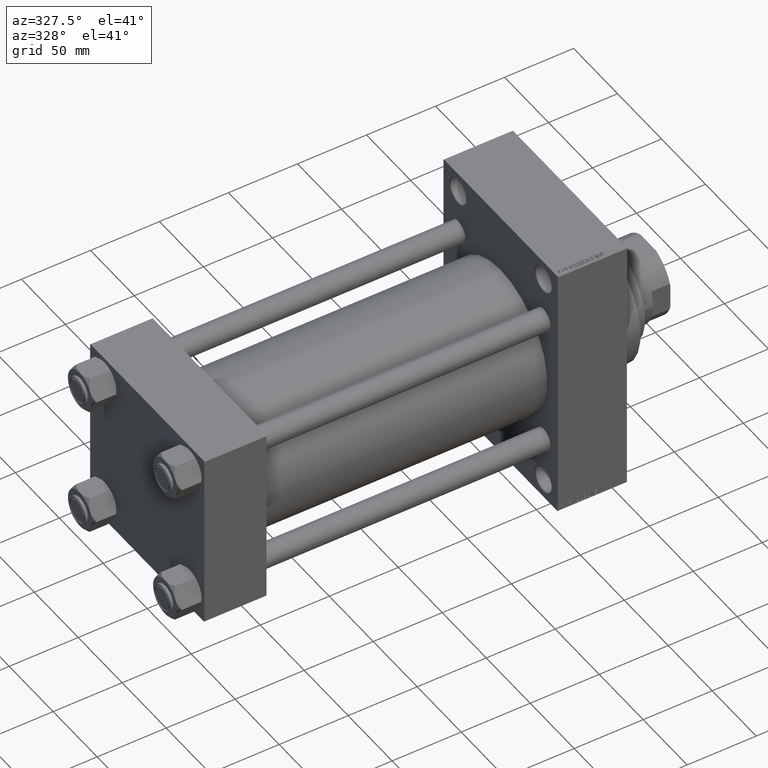
[diagram: clean part render]
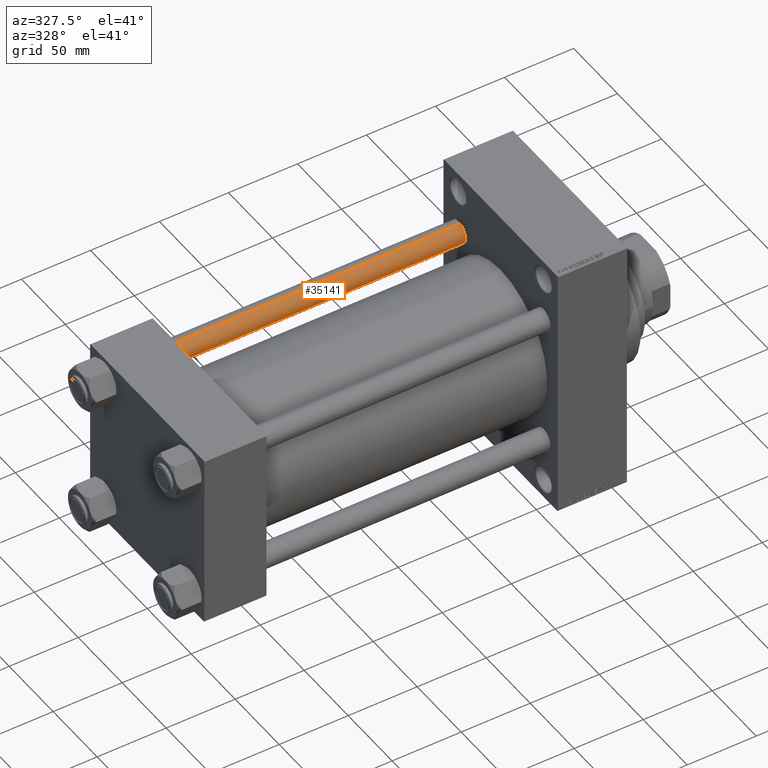
[diagram: same view with one face highlighted and labeled with its STEP entity id]
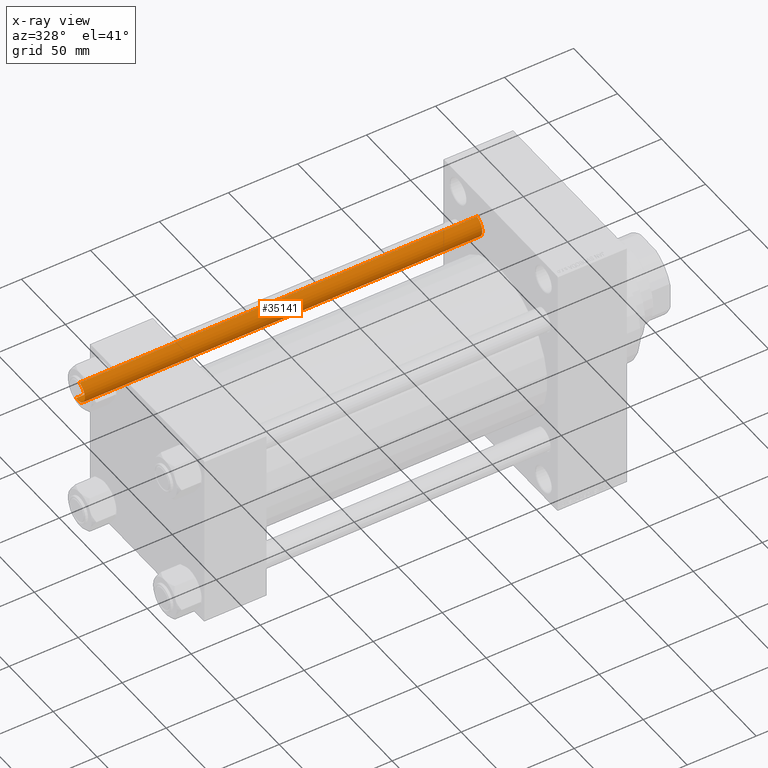
[diagram: x-ray of the same camera — body ghosted, the highlighted face saturated]
A machine part, auxiliary view. The second image highlights one B-rep face of the part: STEP entity #35141.
The next image is the same camera in x-ray: the body ghosted, the highlighted face saturated — about 0% of this face is hidden behind the body in this view.
In plain terms, the highlighted cylindrical surface (edge-blend (fillet) strip) has radius 8 mm, axis along (-1, -0, 0).
Its self-contained STEP definition (entity closure, byte-faithful):
#2326 = CARTESIAN_POINT ( 'NONE',  ( -8.000000000000000000, 0.000000000000000000, 289.0000000000000000 ) ) ;
#5060 = FACE_OUTER_BOUND ( 'NONE', #15351, .T. ) ;
#5304 = CYLINDRICAL_SURFACE ( 'NONE', #41360, 8.000000000000000000 ) ;
#8291 = VERTEX_POINT ( 'NONE', #25062 ) ;
#10431 = VERTEX_POINT ( 'NONE', #44399 ) ;
#15351 = EDGE_LOOP ( 'NONE', ( #21413, #37811, #22789, #37921 ) ) ;
#15922 = CIRCLE ( 'NONE', #34844, 8.000000000000000000 ) ;
#16666 = CARTESIAN_POINT ( 'NONE',  ( 0.000000000000000000, 0.000000000000000000, 289.0000000000000000 ) ) ;
#18906 = CIRCLE ( 'NONE', #25210, 8.000000000000000000 ) ;
#19583 = DIRECTION ( 'NONE',  ( -0.000000000000000000, -0.000000000000000000, -1.000000000000000000 ) ) ;
#19764 = EDGE_CURVE ( 'NONE', #37054, #36931, #18906, .T. ) ;
#20620 = DIRECTION ( 'NONE',  ( -1.000000000000000000, 0.000000000000000000, 0.000000000000000000 ) ) ;
#21413 = ORIENTED_EDGE ( 'NONE', *, *, #38571, .F. ) ;
#22051 = DIRECTION ( 'NONE',  ( -0.000000000000000000, -0.000000000000000000, -1.000000000000000000 ) ) ;
#22789 = ORIENTED_EDGE ( 'NONE', *, *, #24087, .T. ) ;
#24087 = EDGE_CURVE ( 'NONE', #10431, #37054, #39356, .T. ) ;
#25062 = CARTESIAN_POINT ( 'NONE',  ( 8.000000000000000000, 9.797174393178825657E-16, 288.5000000000000000 ) ) ;
#25210 = AXIS2_PLACEMENT_3D ( 'NONE', #35711, #46298, #42607 ) ;
#26658 = DIRECTION ( 'NONE',  ( 0.000000000000000000, 0.000000000000000000, -1.000000000000000000 ) ) ;
#27221 = CARTESIAN_POINT ( 'NONE',  ( 8.000000000000000000, 9.797174393178825657E-16, 289.0000000000000000 ) ) ;
#27388 = CARTESIAN_POINT ( 'NONE',  ( 0.000000000000000000, 0.000000000000000000, 288.5000000000000000 ) ) ;
#27993 = EDGE_CURVE ( 'NONE', #8291, #10431, #15922, .T. ) ;
#30081 = VECTOR ( 'NONE', #22051, 1000.000000000000000 ) ;
#32598 = LINE ( 'NONE', #27221, #41355 ) ;
#32886 = CARTESIAN_POINT ( 'NONE',  ( -8.000000000000000000, 0.000000000000000000, 0.5000000000000004441 ) ) ;
#34844 = AXIS2_PLACEMENT_3D ( 'NONE', #27388, #26658, #42439 ) ;
#35141 = ADVANCED_FACE ( 'NONE', ( #5060 ), #5304, .T. ) ;
#35711 = CARTESIAN_POINT ( 'NONE',  ( 0.000000000000000000, 0.000000000000000000, 0.5000000000000004441 ) ) ;
#36931 = VERTEX_POINT ( 'NONE', #41810 ) ;
#37054 = VERTEX_POINT ( 'NONE', #32886 ) ;
#37811 = ORIENTED_EDGE ( 'NONE', *, *, #27993, .T. ) ;
#37921 = ORIENTED_EDGE ( 'NONE', *, *, #19764, .T. ) ;
#38571 = EDGE_CURVE ( 'NONE', #8291, #36931, #32598, .T. ) ;
#39356 = LINE ( 'NONE', #2326, #30081 ) ;
#39374 = DIRECTION ( 'NONE',  ( -0.000000000000000000, -0.000000000000000000, -1.000000000000000000 ) ) ;
#41355 = VECTOR ( 'NONE', #19583, 1000.000000000000000 ) ;
#41360 = AXIS2_PLACEMENT_3D ( 'NONE', #16666, #39374, #20620 ) ;
#41810 = CARTESIAN_POINT ( 'NONE',  ( 8.000000000000000000, 9.797174393178825657E-16, 0.5000000000000004441 ) ) ;
#42439 = DIRECTION ( 'NONE',  ( 1.000000000000000000, 0.000000000000000000, 0.000000000000000000 ) ) ;
#42607 = DIRECTION ( 'NONE',  ( 1.000000000000000000, 0.000000000000000000, 0.000000000000000000 ) ) ;
#44399 = CARTESIAN_POINT ( 'NONE',  ( -8.000000000000000000, 0.000000000000000000, 288.5000000000000000 ) ) ;
#46298 = DIRECTION ( 'NONE',  ( -0.000000000000000000, -0.000000000000000000, 1.000000000000000000 ) ) ;